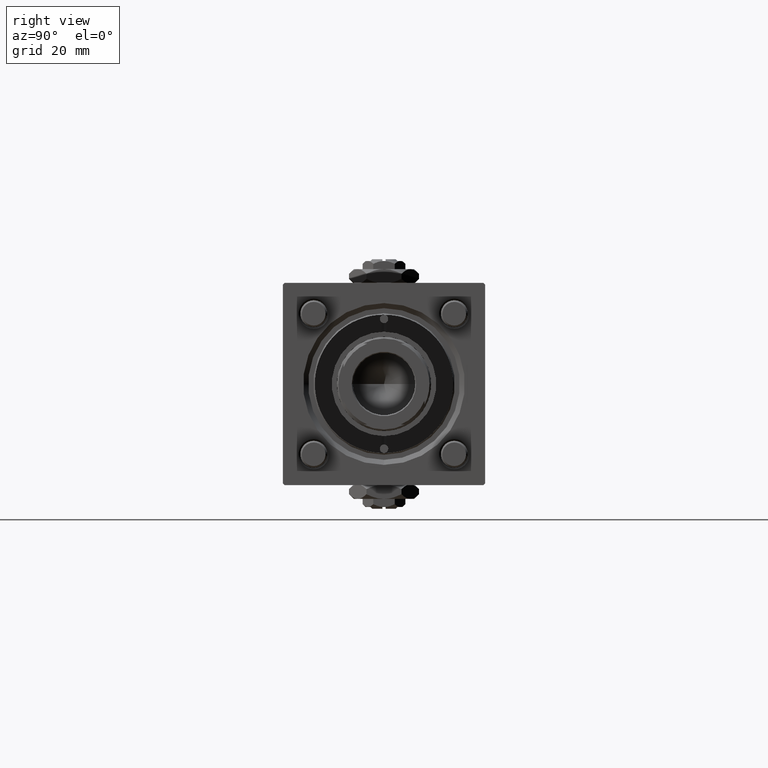
[diagram: clean part render]
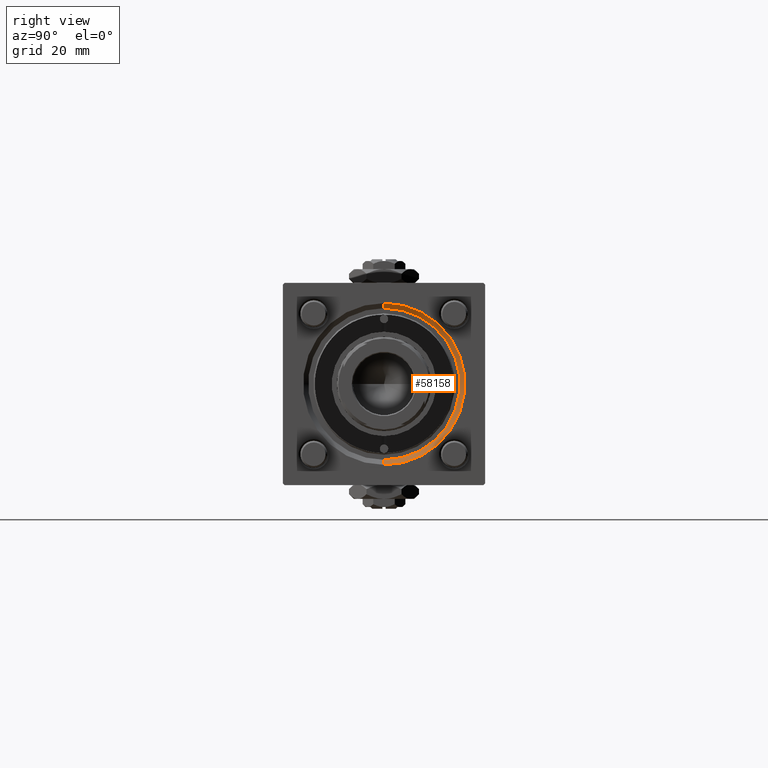
[diagram: same view with one face highlighted and labeled with its STEP entity id]
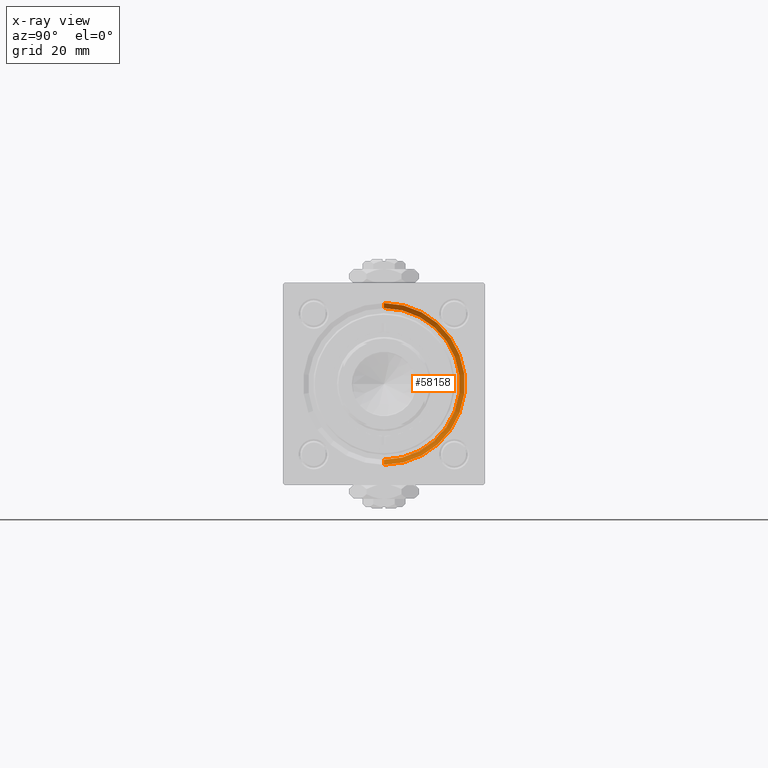
[diagram: x-ray of the same camera — body ghosted, the highlighted face saturated]
A machine part, right view. The second image highlights one B-rep face of the part: STEP entity #58158.
The next image is the same camera in x-ray: the body ghosted, the highlighted face saturated — about 0% of this face is hidden behind the body in this view.
In plain terms, the highlighted conical surface has half-angle 45 deg.
Its self-contained STEP definition (entity closure, byte-faithful):
#2116 = EDGE_CURVE ( 'NONE', #10222, #8400, #40290, .T. ) ;
#3126 = AXIS2_PLACEMENT_3D ( 'NONE', #42588, #27976, #46166 ) ;
#3666 = CIRCLE ( 'NONE', #52299, 24.00000000000003908 ) ;
#7252 = DIRECTION ( 'NONE',  ( 1.000000000000000000, 0.000000000000000000, 0.000000000000000000 ) ) ;
#7311 = VECTOR ( 'NONE', #52267, 1000.000000000000000 ) ;
#7672 = CARTESIAN_POINT ( 'NONE',  ( 148.0000000000000000, 0.000000000000000000, 0.000000000000000000 ) ) ;
#8400 = VERTEX_POINT ( 'NONE', #45452 ) ;
#10222 = VERTEX_POINT ( 'NONE', #14411 ) ;
#14411 = CARTESIAN_POINT ( 'NONE',  ( 146.4999999999999432, 0.000000000000000000, -22.50000000000000355 ) ) ;
#14604 = CONICAL_SURFACE ( 'NONE', #3126, 22.50000000000000355, 0.7853981633974415066 ) ;
#18354 = VERTEX_POINT ( 'NONE', #46705 ) ;
#18635 = EDGE_CURVE ( 'NONE', #18354, #51893, #55273, .T. ) ;
#21690 = ORIENTED_EDGE ( 'NONE', *, *, #18635, .F. ) ;
#21996 = DIRECTION ( 'NONE',  ( 0.000000000000000000, 0.000000000000000000, 1.000000000000000000 ) ) ;
#27976 = DIRECTION ( 'NONE',  ( 1.000000000000000000, 0.000000000000000000, 0.000000000000000000 ) ) ;
#27979 = CARTESIAN_POINT ( 'NONE',  ( 146.4999999999999432, 0.000000000000000000, -22.50000000000000355 ) ) ;
#28561 = VECTOR ( 'NONE', #46460, 1000.000000000000000 ) ;
#28914 = EDGE_CURVE ( 'NONE', #51893, #8400, #3666, .T. ) ;
#29037 = CARTESIAN_POINT ( 'NONE',  ( 146.4999999999999432, 2.755455298081545172E-15, 22.50000000000000355 ) ) ;
#32588 = ORIENTED_EDGE ( 'NONE', *, *, #28914, .F. ) ;
#40290 = LINE ( 'NONE', #27979, #28561 ) ;
#42588 = CARTESIAN_POINT ( 'NONE',  ( 146.4999999999999432, 0.000000000000000000, 0.000000000000000000 ) ) ;
#43063 = CARTESIAN_POINT ( 'NONE',  ( 148.0000000000000000, 2.939152317953652628E-15, 24.00000000000003908 ) ) ;
#44677 = DIRECTION ( 'NONE',  ( -1.000000000000000000, 0.000000000000000000, -0.000000000000000000 ) ) ;
#44838 = EDGE_CURVE ( 'NONE', #10222, #18354, #50524, .T. ) ;
#45452 = CARTESIAN_POINT ( 'NONE',  ( 148.0000000000000000, 0.000000000000000000, -24.00000000000003908 ) ) ;
#46166 = DIRECTION ( 'NONE',  ( 0.000000000000000000, 0.000000000000000000, -1.000000000000000000 ) ) ;
#46460 = DIRECTION ( 'NONE',  ( 0.7071067811865524577, 0.000000000000000000, -0.7071067811865426878 ) ) ;
#46705 = CARTESIAN_POINT ( 'NONE',  ( 146.4999999999999432, 2.755455298081545172E-15, 22.50000000000000355 ) ) ;
#48438 = CARTESIAN_POINT ( 'NONE',  ( 146.4999999999999432, 0.000000000000000000, 0.000000000000000000 ) ) ;
#48733 = DIRECTION ( 'NONE',  ( 0.000000000000000000, 0.000000000000000000, 1.000000000000000000 ) ) ;
#50524 = CIRCLE ( 'NONE', #53357, 22.50000000000000355 ) ;
#51581 = EDGE_LOOP ( 'NONE', ( #21690, #56607, #55300, #32588 ) ) ;
#51893 = VERTEX_POINT ( 'NONE', #43063 ) ;
#52267 = DIRECTION ( 'NONE',  ( 0.7071067811865524577, 8.659560562354874926E-17, 0.7071067811865426878 ) ) ;
#52299 = AXIS2_PLACEMENT_3D ( 'NONE', #7672, #44677, #21996 ) ;
#53357 = AXIS2_PLACEMENT_3D ( 'NONE', #48438, #7252, #48733 ) ;
#55273 = LINE ( 'NONE', #29037, #7311 ) ;
#55300 = ORIENTED_EDGE ( 'NONE', *, *, #2116, .T. ) ;
#55696 = FACE_OUTER_BOUND ( 'NONE', #51581, .T. ) ;
#56607 = ORIENTED_EDGE ( 'NONE', *, *, #44838, .F. ) ;
#58158 = ADVANCED_FACE ( 'NONE', ( #55696 ), #14604, .F. ) ;